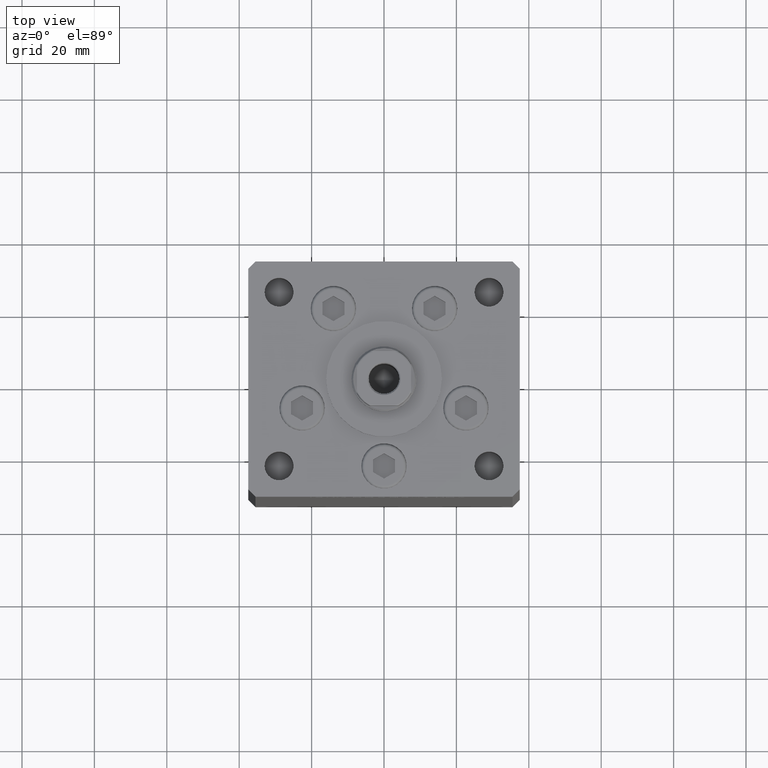
[diagram: clean part render]
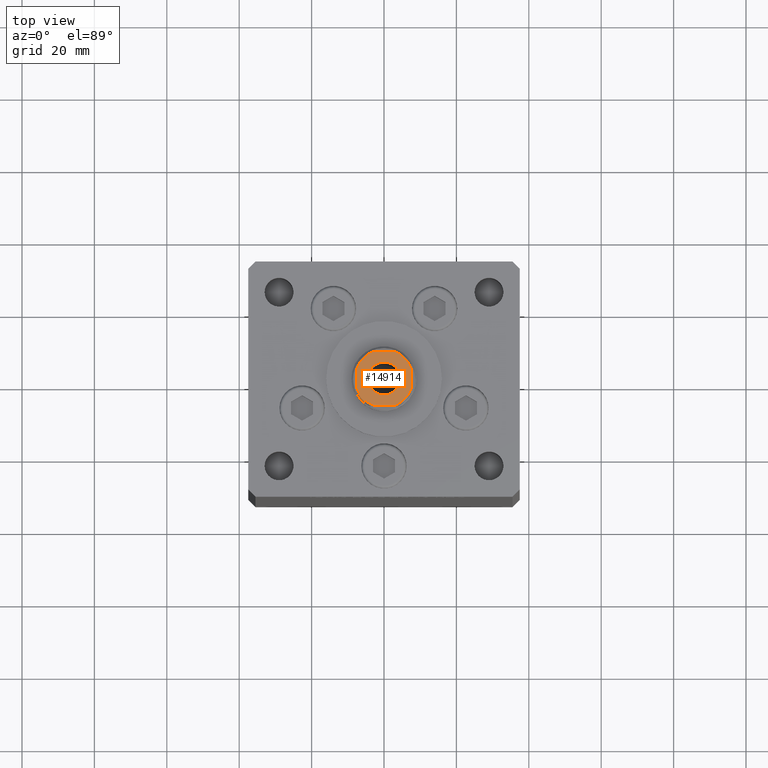
[diagram: same view with one face highlighted and labeled with its STEP entity id]
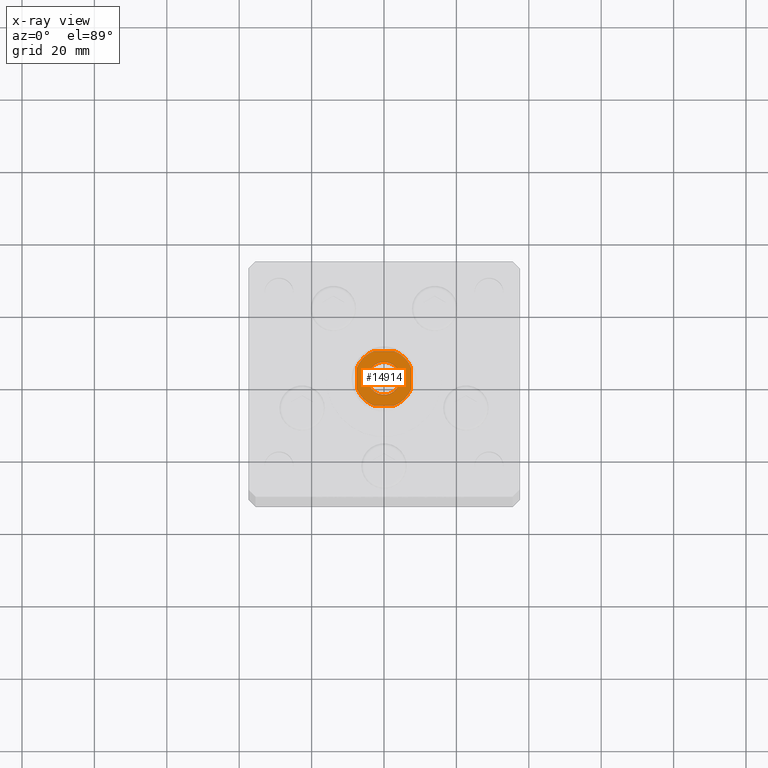
[diagram: x-ray of the same camera — body ghosted, the highlighted face saturated]
A machine part, top view. The second image highlights one B-rep face of the part: STEP entity #14914.
The next image is the same camera in x-ray: the body ghosted, the highlighted face saturated — about 0% of this face is hidden behind the body in this view.
In plain terms, the highlighted planar face has unit normal (0, 0, 1).
Its self-contained STEP definition (entity closure, byte-faithful):
#1071 = EDGE_CURVE ( 'NONE', #40675, #1911, #47495, .T. ) ;
#1583 = CARTESIAN_POINT ( 'NONE',  ( 0.000000000000000000, 0.000000000000000000, 148.0000000000000284 ) ) ;
#1655 = CARTESIAN_POINT ( 'NONE',  ( -7.499999999999998224, -2.783882181415016088, 148.0000000000000284 ) ) ;
#1911 = VERTEX_POINT ( 'NONE', #23102 ) ;
#2334 = DIRECTION ( 'NONE',  ( -0.000000000000000000, 0.000000000000000000, 1.000000000000000000 ) ) ;
#2817 = EDGE_LOOP ( 'NONE', ( #15255, #3872, #32404, #44790, #9568, #14437, #50577, #35924 ) ) ;
#3438 = DIRECTION ( 'NONE',  ( -0.000000000000000000, 0.000000000000000000, 1.000000000000000000 ) ) ;
#3872 = ORIENTED_EDGE ( 'NONE', *, *, #7797, .T. ) ;
#4901 = VERTEX_POINT ( 'NONE', #38008 ) ;
#5144 = CIRCLE ( 'NONE', #45558, 4.550000000000012257 ) ;
#5285 = EDGE_CURVE ( 'NONE', #48388, #40675, #6251, .T. ) ;
#5952 = CIRCLE ( 'NONE', #13561, 4.550000000000012257 ) ;
#6251 = CIRCLE ( 'NONE', #18913, 8.000000000000000000 ) ;
#7448 = VERTEX_POINT ( 'NONE', #35405 ) ;
#7797 = EDGE_CURVE ( 'NONE', #13207, #4901, #22893, .T. ) ;
#8751 = VERTEX_POINT ( 'NONE', #50080 ) ;
#9568 = ORIENTED_EDGE ( 'NONE', *, *, #51031, .T. ) ;
#10792 = ORIENTED_EDGE ( 'NONE', *, *, #50097, .T. ) ;
#11342 = DIRECTION ( 'NONE',  ( -1.000000000000000000, -5.782411586589357392E-17, -0.000000000000000000 ) ) ;
#11347 = FACE_BOUND ( 'NONE', #27570, .T. ) ;
#11518 = VERTEX_POINT ( 'NONE', #16220 ) ;
#11592 = DIRECTION ( 'NONE',  ( -0.000000000000000000, 0.000000000000000000, 1.000000000000000000 ) ) ;
#11762 = EDGE_CURVE ( 'NONE', #47451, #14897, #44762, .T. ) ;
#12024 = LINE ( 'NONE', #25197, #46698 ) ;
#12648 = CARTESIAN_POINT ( 'NONE',  ( 0.000000000000000000, 0.000000000000000000, 148.0000000000000284 ) ) ;
#12830 = AXIS2_PLACEMENT_3D ( 'NONE', #51694, #11592, #51950 ) ;
#13207 = VERTEX_POINT ( 'NONE', #1655 ) ;
#13561 = AXIS2_PLACEMENT_3D ( 'NONE', #49289, #38188, #45320 ) ;
#14437 = ORIENTED_EDGE ( 'NONE', *, *, #5285, .T. ) ;
#14897 = VERTEX_POINT ( 'NONE', #39067 ) ;
#14898 = CIRCLE ( 'NONE', #30919, 8.000000000000000000 ) ;
#14914 = ADVANCED_FACE ( 'NONE', ( #11347, #43530 ), #35617, .T. ) ;
#15255 = ORIENTED_EDGE ( 'NONE', *, *, #21074, .T. ) ;
#15556 = CARTESIAN_POINT ( 'NONE',  ( -7.499999999999998224, 7.499999999999999112, 148.0000000000000284 ) ) ;
#16220 = CARTESIAN_POINT ( 'NONE',  ( 4.550000000000012257, 0.000000000000000000, 148.0000000000000284 ) ) ;
#17299 = DIRECTION ( 'NONE',  ( 5.782411586589357392E-17, -1.000000000000000000, 0.000000000000000000 ) ) ;
#17638 = DIRECTION ( 'NONE',  ( -0.000000000000000000, 0.000000000000000000, 1.000000000000000000 ) ) ;
#17685 = DIRECTION ( 'NONE',  ( -0.000000000000000000, 0.000000000000000000, 1.000000000000000000 ) ) ;
#18312 = DIRECTION ( 'NONE',  ( 1.156482317317871478E-16, 1.000000000000000000, -0.000000000000000000 ) ) ;
#18913 = AXIS2_PLACEMENT_3D ( 'NONE', #26339, #17638, #49821 ) ;
#20143 = CARTESIAN_POINT ( 'NONE',  ( -7.499999999999997335, -7.500000000000000888, 148.0000000000000284 ) ) ;
#21074 = EDGE_CURVE ( 'NONE', #8751, #13207, #12024, .T. ) ;
#21923 = VECTOR ( 'NONE', #32287, 1000.000000000000000 ) ;
#22021 = AXIS2_PLACEMENT_3D ( 'NONE', #12648, #3438, #51711 ) ;
#22893 = CIRCLE ( 'NONE', #31337, 8.000000000000000000 ) ;
#23102 = CARTESIAN_POINT ( 'NONE',  ( -2.783882181415013868, 7.499999999999999112, 148.0000000000000284 ) ) ;
#25197 = CARTESIAN_POINT ( 'NONE',  ( -7.499999999999998224, 7.499999999999999112, 148.0000000000000284 ) ) ;
#26244 = VECTOR ( 'NONE', #18312, 1000.000000000000000 ) ;
#26339 = CARTESIAN_POINT ( 'NONE',  ( 0.000000000000000000, 0.000000000000000000, 148.0000000000000284 ) ) ;
#26350 = DIRECTION ( 'NONE',  ( 1.000000000000000000, 0.000000000000000000, 0.000000000000000000 ) ) ;
#27277 = DIRECTION ( 'NONE',  ( 1.000000000000000000, 0.000000000000000000, 0.000000000000000000 ) ) ;
#27570 = EDGE_LOOP ( 'NONE', ( #33144, #10792 ) ) ;
#27931 = EDGE_CURVE ( 'NONE', #1911, #8751, #14898, .T. ) ;
#30919 = AXIS2_PLACEMENT_3D ( 'NONE', #49575, #2334, #26350 ) ;
#31337 = AXIS2_PLACEMENT_3D ( 'NONE', #1583, #17685, #33784 ) ;
#32287 = DIRECTION ( 'NONE',  ( 1.000000000000000000, 5.782411586589358625E-17, 0.000000000000000000 ) ) ;
#32404 = ORIENTED_EDGE ( 'NONE', *, *, #43835, .T. ) ;
#33144 = ORIENTED_EDGE ( 'NONE', *, *, #44200, .T. ) ;
#33784 = DIRECTION ( 'NONE',  ( 1.000000000000000000, 0.000000000000000000, 0.000000000000000000 ) ) ;
#34934 = LINE ( 'NONE', #38623, #26244 ) ;
#35405 = CARTESIAN_POINT ( 'NONE',  ( -4.550000000000012257, 5.572142936120472118E-16, 148.0000000000000284 ) ) ;
#35617 = PLANE ( 'NONE',  #12830 ) ;
#35924 = ORIENTED_EDGE ( 'NONE', *, *, #27931, .T. ) ;
#35964 = DIRECTION ( 'NONE',  ( 0.000000000000000000, -0.000000000000000000, -1.000000000000000000 ) ) ;
#38008 = CARTESIAN_POINT ( 'NONE',  ( -2.783882181415010315, -7.500000000000000888, 148.0000000000000284 ) ) ;
#38188 = DIRECTION ( 'NONE',  ( 0.000000000000000000, -0.000000000000000000, -1.000000000000000000 ) ) ;
#38623 = CARTESIAN_POINT ( 'NONE',  ( 7.500000000000001776, 7.500000000000000000, 148.0000000000000284 ) ) ;
#39067 = CARTESIAN_POINT ( 'NONE',  ( 7.500000000000000888, -2.783882181415009427, 148.0000000000000284 ) ) ;
#40675 = VERTEX_POINT ( 'NONE', #51998 ) ;
#41449 = VECTOR ( 'NONE', #11342, 1000.000000000000000 ) ;
#43178 = CARTESIAN_POINT ( 'NONE',  ( 7.500000000000000888, 2.783882181415007206, 148.0000000000000284 ) ) ;
#43530 = FACE_OUTER_BOUND ( 'NONE', #2817, .T. ) ;
#43633 = LINE ( 'NONE', #20143, #21923 ) ;
#43835 = EDGE_CURVE ( 'NONE', #4901, #47451, #43633, .T. ) ;
#44200 = EDGE_CURVE ( 'NONE', #11518, #7448, #5952, .T. ) ;
#44762 = CIRCLE ( 'NONE', #22021, 8.000000000000000000 ) ;
#44790 = ORIENTED_EDGE ( 'NONE', *, *, #11762, .T. ) ;
#45320 = DIRECTION ( 'NONE',  ( 1.000000000000000000, 0.000000000000000000, 0.000000000000000000 ) ) ;
#45558 = AXIS2_PLACEMENT_3D ( 'NONE', #51263, #35964, #27277 ) ;
#46698 = VECTOR ( 'NONE', #17299, 1000.000000000000000 ) ;
#47451 = VERTEX_POINT ( 'NONE', #51792 ) ;
#47495 = LINE ( 'NONE', #15556, #41449 ) ;
#48388 = VERTEX_POINT ( 'NONE', #43178 ) ;
#49289 = CARTESIAN_POINT ( 'NONE',  ( 0.000000000000000000, 0.000000000000000000, 148.0000000000000284 ) ) ;
#49575 = CARTESIAN_POINT ( 'NONE',  ( 0.000000000000000000, 0.000000000000000000, 148.0000000000000284 ) ) ;
#49821 = DIRECTION ( 'NONE',  ( 1.000000000000000000, 0.000000000000000000, 0.000000000000000000 ) ) ;
#50080 = CARTESIAN_POINT ( 'NONE',  ( -7.499999999999998224, 2.783882181415015644, 148.0000000000000284 ) ) ;
#50097 = EDGE_CURVE ( 'NONE', #7448, #11518, #5144, .T. ) ;
#50577 = ORIENTED_EDGE ( 'NONE', *, *, #1071, .T. ) ;
#51031 = EDGE_CURVE ( 'NONE', #14897, #48388, #34934, .T. ) ;
#51263 = CARTESIAN_POINT ( 'NONE',  ( 0.000000000000000000, 0.000000000000000000, 148.0000000000000284 ) ) ;
#51694 = CARTESIAN_POINT ( 'NONE',  ( 0.000000000000000000, 0.000000000000000000, 148.0000000000000284 ) ) ;
#51711 = DIRECTION ( 'NONE',  ( 1.000000000000000000, 0.000000000000000000, 0.000000000000000000 ) ) ;
#51792 = CARTESIAN_POINT ( 'NONE',  ( 2.783882181415008539, -7.500000000000000888, 148.0000000000000284 ) ) ;
#51950 = DIRECTION ( 'NONE',  ( 1.000000000000000000, 0.000000000000000000, 0.000000000000000000 ) ) ;
#51998 = CARTESIAN_POINT ( 'NONE',  ( 2.783882181415012980, 7.500000000000000000, 148.0000000000000284 ) ) ;